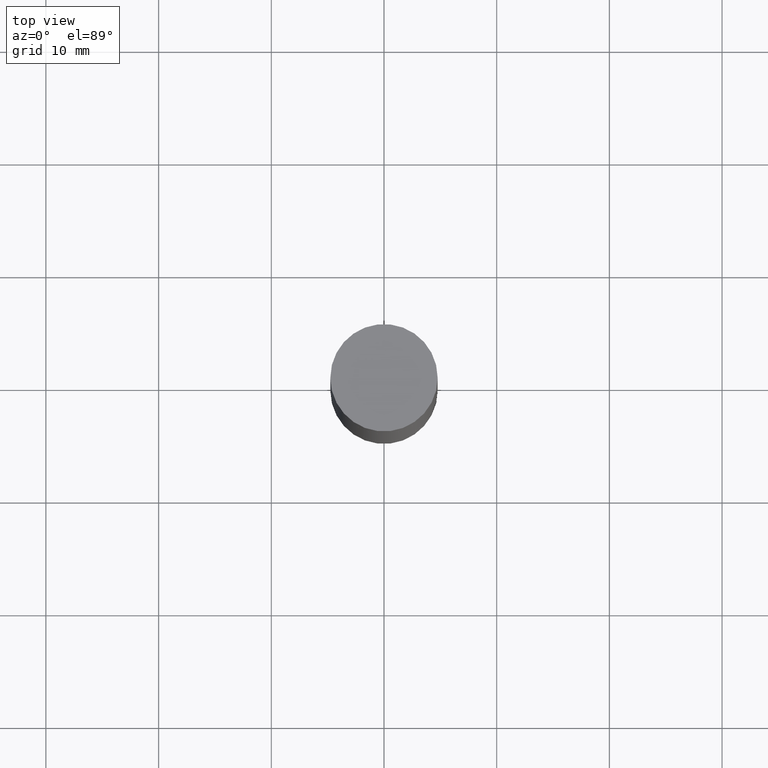
[diagram: clean part render]
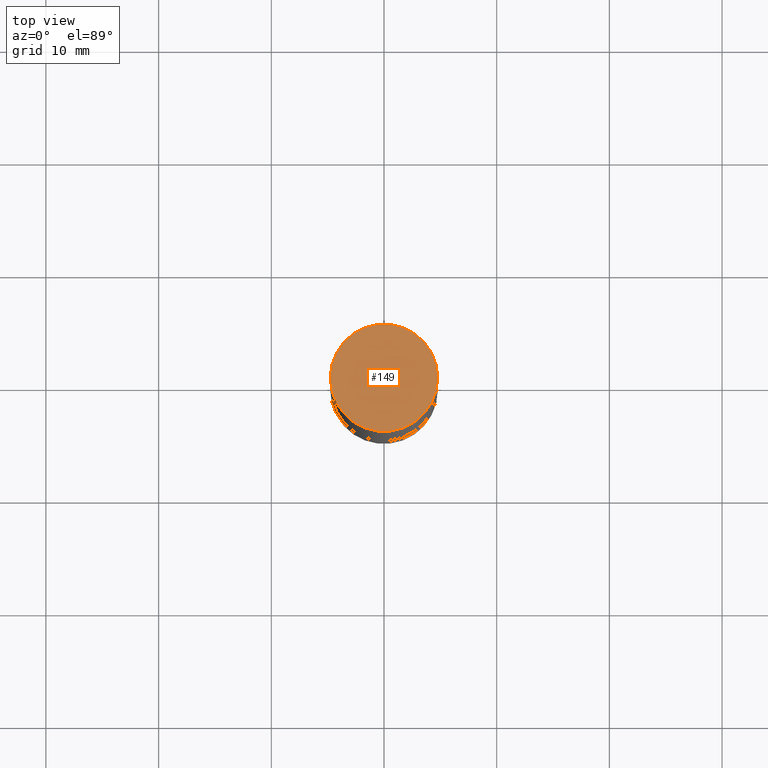
[diagram: same view with one face highlighted and labeled with its STEP entity id]
A machine part, top view. The second image highlights one B-rep face of the part: STEP entity #149.
In plain terms, the highlighted planar face has unit normal (0, 0, 1).
Its self-contained STEP definition (entity closure, byte-faithful):
#22 = VERTEX_POINT ( 'NONE', #559 ) ;
#46 = CARTESIAN_POINT ( 'NONE',  ( -0.1875000000000000278, 3.066025098218802702E-16, 5.463695987328561936E-16 ) ) ;
#115 = CARTESIAN_POINT ( 'NONE',  ( 6.113672015462842613E-29, 1.761340885760521790E-18, 5.463695987328526437E-16 ) ) ;
#124 = CARTESIAN_POINT ( 'NONE',  ( 6.113672015462842613E-29, 1.761340885760521790E-18, 5.463695987328526437E-16 ) ) ;
#140 = CIRCLE ( 'NONE', #647, 0.1875000000000000278 ) ;
#149 = ADVANCED_FACE ( 'NONE', ( #610 ), #556, .T. ) ;
#160 = DIRECTION ( 'NONE',  ( 1.000000000000000000, -6.982962677686265922E-15, 0.000000000000000000 ) ) ;
#190 = DIRECTION ( 'NONE',  ( -1.000000000000000000, 6.982962677686265922E-15, -9.839502134516470631E-33 ) ) ;
#224 = AXIS2_PLACEMENT_3D ( 'NONE', #124, #487, #160 ) ;
#246 = CARTESIAN_POINT ( 'NONE',  ( 1.309305502066236145E-15, 0.1874999999999999722, 0.000000000000000000 ) ) ;
#284 = DIRECTION ( 'NONE',  ( 1.000000000000000000, -6.982962677686265922E-15, 0.000000000000000000 ) ) ;
#308 = VERTEX_POINT ( 'NONE', #46 ) ;
#467 = ORIENTED_EDGE ( 'NONE', *, *, #605, .T. ) ;
#470 = CIRCLE ( 'NONE', #224, 0.1875000000000000278 ) ;
#474 = EDGE_LOOP ( 'NONE', ( #467, #572 ) ) ;
#487 = DIRECTION ( 'NONE',  ( 2.445468806185136597E-29, 3.492890411551752677E-15, 1.000000000000000000 ) ) ;
#535 = DIRECTION ( 'NONE',  ( 2.445468806185136597E-29, 3.492890411551752677E-15, 1.000000000000000000 ) ) ;
#556 = PLANE ( 'NONE',  #639 ) ;
#559 = CARTESIAN_POINT ( 'NONE',  ( 0.1875000000000000278, -1.307544161180414563E-15, 5.463695987328526437E-16 ) ) ;
#572 = ORIENTED_EDGE ( 'NONE', *, *, #601, .T. ) ;
#601 = EDGE_CURVE ( 'NONE', #308, #22, #470, .T. ) ;
#605 = EDGE_CURVE ( 'NONE', #22, #308, #140, .T. ) ;
#610 = FACE_OUTER_BOUND ( 'NONE', #474, .T. ) ;
#639 = AXIS2_PLACEMENT_3D ( 'NONE', #246, #662, #190 ) ;
#647 = AXIS2_PLACEMENT_3D ( 'NONE', #115, #535, #284 ) ;
#662 = DIRECTION ( 'NONE',  ( 2.438088387897959769E-29, 3.492890411551753071E-15, 1.000000000000000000 ) ) ;